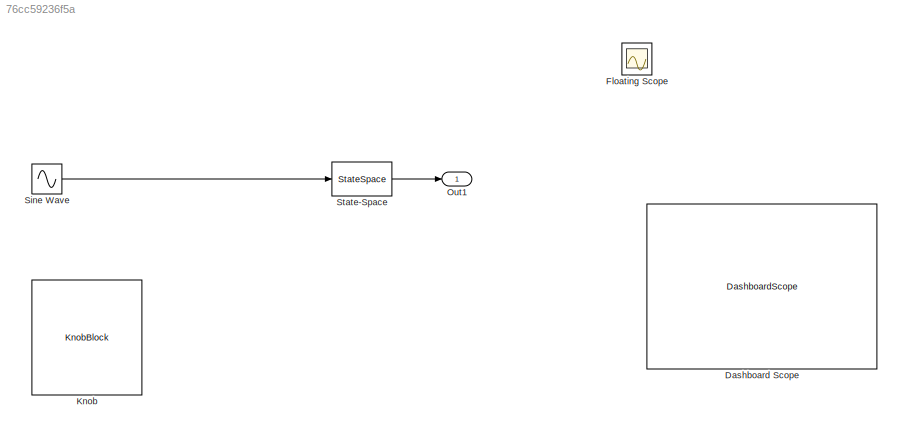
MODEL slx_76cc59236f5a
KIND model
CONFIG AbsTol = auto
CONFIG EnableMultiTasking = off
CONFIG FixedStep = 0.001
CONFIG MaxStep = auto
CONFIG MinStep = auto
CONFIG RelTol = 1e-3
CONFIG SampleTimeConstraint = Unconstrained
CONFIG SolverName = FixedStepAuto
CONFIG StartTime = 0.0
CONFIG StopTime = 50
BLOCK [DashboardScope] Dashboard Scope
BLOCK [Scope] Floating Scope
  Floating = on
  NumInputPorts = 1
  ScopeSpecificationString = Simulink.scopes.TimeScopeBlockCfg('CurrentConfiguration', extmgr.ConfigurationSet(extmgr.Configuration('Core','General UI',true),extmgr.Configuration('Core','Source UI',true),extmgr.Configuration('Sources','WiredSimulink',true,'DataLoggingVariableName','ScopeData1'),extmgr.Configuration('Visuals','Time Domain',true,'SerializedDisplays',{struct('MinYLimReal','-15.14619','MaxYLimReal','14.4818','YLa...<+1490ch>
BLOCK [KnobBlock] Knob
  ScaleMax = 30
BLOCK [Outport] Out1
BLOCK [Sin] Sine Wave
  Amplitude = 21.60557403564453
  Frequency = 3
  Phase = pi/4
  SampleTime = 0
BLOCK [StateSpace] State-Space
  A = A
  B = B'
  C = C
  D = D
  InitialCondition = 0
LINE Sine Wave:1 -> State-Space:1
LINE State-Space:1 -> Out1:1
